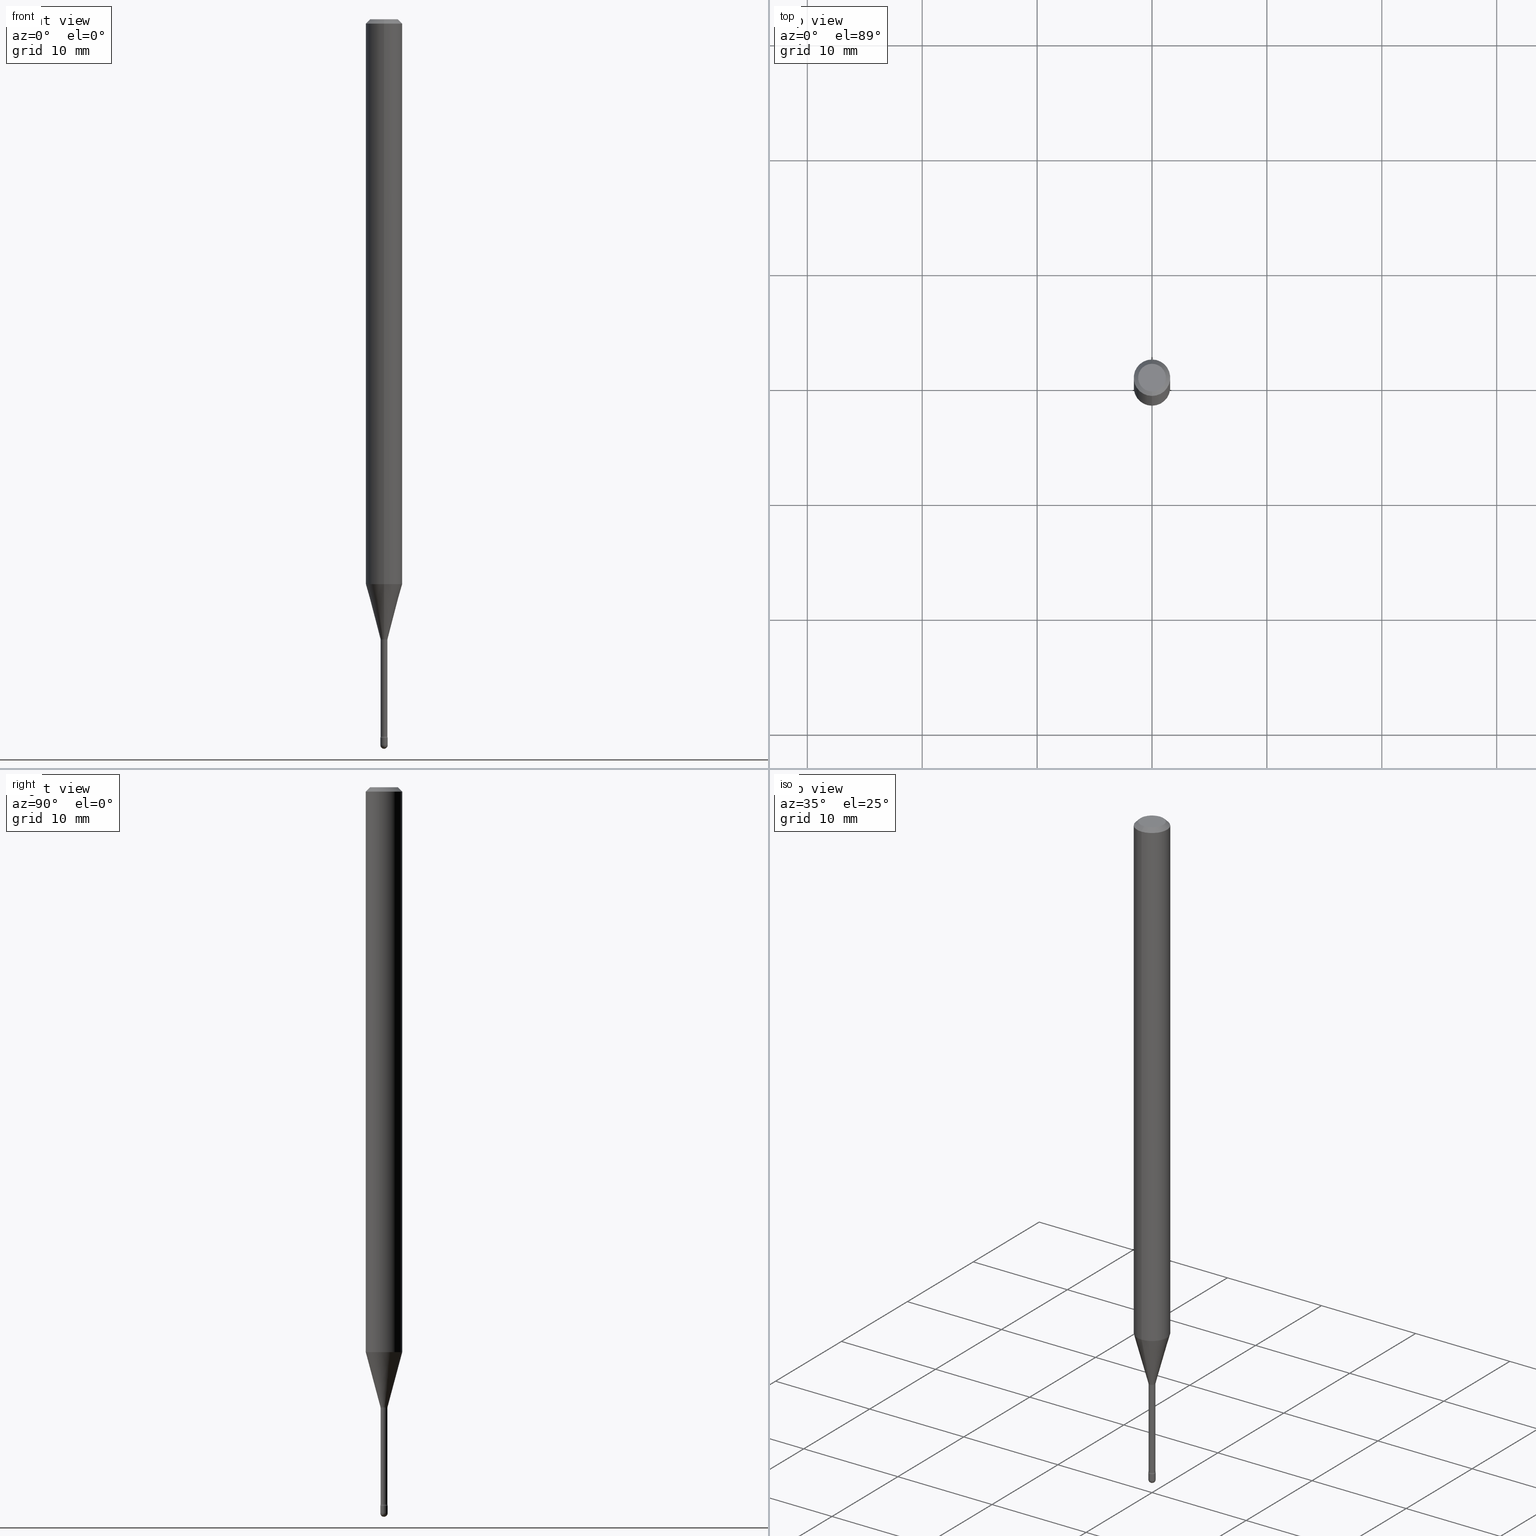
[diagram: canonical four-view strip — front | top / right | iso, engineering-drawing reading convention]
A machine part, canonical four-view strip (front | top / right | iso — engineering-drawing reading convention). The complete STEP part file that produces these views, byte-faithful:
ISO-10303-21;
HEADER;
FILE_DESCRIPTION (( 'STEP AP203' ),
    '1' );
FILE_NAME ('09428.STEP',
    '2024-04-09T23:02:52',
    ( '' ),
    ( '' ),
    'SwSTEP 2.0',
    'SolidWorks 2023',
    '' );
FILE_SCHEMA (( 'CONFIG_CONTROL_DESIGN' ));
ENDSEC;

DATA;
#1 = AXIS2_PLACEMENT_3D ( 'NONE', #545, #534, #242 ) ;
#2 = CARTESIAN_POINT ( 'NONE',  ( -8.204981146276162277E-17, -0.01175000000000742811, -2.126974787463811190 ) ) ;
#3 = FACE_OUTER_BOUND ( 'NONE', #55, .T. ) ;
#4 = LINE ( 'NONE', #525, #397 ) ;
#5 = ORIENTED_EDGE ( 'NONE', *, *, #80, .F. ) ;
#6 = CARTESIAN_POINT ( 'NONE',  ( 4.733511001452815197E-29, -6.758012053933247816E-15, -1.935598421515879908 ) ) ;
#7 = PERSON_AND_ORGANIZATION_ROLE ( 'classification_officer' ) ;
#8 = ORIENTED_EDGE ( 'NONE', *, *, #162, .T. ) ;
#9 = AXIS2_PLACEMENT_3D ( 'NONE', #354, #96, #439 ) ;
#10 = PLANE ( 'NONE',  #491 ) ;
#11 = CALENDAR_DATE ( 2024, 9, 4 ) ;
#12 = EDGE_CURVE ( 'NONE', #155, #165, #509, .T. ) ;
#13 = APPROVAL_ROLE ( '' ) ;
#14 = DIRECTION ( 'NONE',  ( -2.445468806185136597E-29, 3.491481338843145583E-15, 1.000000000000000000 ) ) ;
#15 = CARTESIAN_POINT ( 'NONE',  ( 6.083103655385528181E-29, -8.685059830372324987E-15, -2.487500000000000266 ) ) ;
#16 = COORDINATED_UNIVERSAL_TIME_OFFSET ( 5, 0, .BEHIND. ) ;
#17 = TOROIDAL_SURFACE ( 'NONE', #452, 0.02675000000000003764, 0.01499999999999998904 ) ;
#18 = APPROVAL ( #562, 'UNSPECIFIED' ) ;
#19 = ORIENTED_EDGE ( 'NONE', *, *, #275, .F. ) ;
#20 = CYLINDRICAL_SURFACE ( 'NONE', #521, 0.06250000000000000000 ) ;
#21 = ORIENTED_EDGE ( 'NONE', *, *, #478, .F. ) ;
#22 = ORIENTED_EDGE ( 'NONE', *, *, #519, .T. ) ;
#23 = EDGE_CURVE ( 'NONE', #466, #461, #209, .T. ) ;
#24 = CARTESIAN_POINT ( 'NONE',  ( -1.169113584055446105E-44, 1.669184350826100908E-30, 4.780733988912460139E-16 ) ) ;
#25 = FACE_OUTER_BOUND ( 'NONE', #453, .T. ) ;
#26 = ORIENTED_EDGE ( 'NONE', *, *, #12, .T. ) ;
#27 = DIRECTION ( 'NONE',  ( -6.982962677686265133E-15, -1.000000000000000000, 3.491432922662056369E-15 ) ) ;
#28 = CARTESIAN_POINT ( 'NONE',  ( 4.440892098501098492E-16, 0.06249999999999323458, -1.935598421515880352 ) ) ;
#29 = SECURITY_CLASSIFICATION ( '', '', #283 ) ;
#30 = ORIENTED_EDGE ( 'NONE', *, *, #541, .F. ) ;
#31 = SPHERICAL_SURFACE ( 'NONE', #417, 0.01249999999999996947 ) ;
#32 = EDGE_LOOP ( 'NONE', ( #249, #109 ) ) ;
#33 = DIRECTION ( 'NONE',  ( -2.445502615023692233E-29, 3.491432922662054397E-15, 1.000000000000000000 ) ) ;
#34 = PLANE ( 'NONE',  #551 ) ;
#35 = CARTESIAN_POINT ( 'NONE',  ( 1.900701818158788115E-16, 0.02674999999999257486, -2.126974787463811190 ) ) ;
#36 = AXIS2_PLACEMENT_3D ( 'NONE', #252, #414, #339 ) ;
#37 = DIMENSIONAL_EXPONENTS ( 1.000000000000000000, 0.000000000000000000, 0.000000000000000000, 0.000000000000000000, 0.000000000000000000, 0.000000000000000000, 0.000000000000000000 ) ;
#38 = VECTOR ( 'NONE', #303, 39.37007874015748143 ) ;
#39 = CIRCLE ( 'NONE', #102, 0.01499999999999999424 ) ;
#40 = FACE_OUTER_BOUND ( 'NONE', #532, .T. ) ;
#41 = FACE_OUTER_BOUND ( 'NONE', #328, .T. ) ;
#42 = DIRECTION ( 'NONE',  ( -6.982962677686266711E-15, -1.000000000000000000, 3.491432922662054003E-15 ) ) ;
#43 = ADVANCED_FACE ( 'NONE', ( #25 ), #270, .T. ) ;
#44 = DIRECTION ( 'NONE',  ( -6.982962677686265133E-15, -1.000000000000000000, 0.000000000000000000 ) ) ;
#45 = AXIS2_PLACEMENT_3D ( 'NONE', #531, #14, #399 ) ;
#46 = DIRECTION ( 'NONE',  ( -2.445502615023692233E-29, 3.491432922662054397E-15, 1.000000000000000000 ) ) ;
#47 = CALENDAR_DATE ( 2024, 9, 4 ) ;
#48 = ORIENTED_EDGE ( 'NONE', *, *, #151, .T. ) ;
#49 = DIRECTION ( 'NONE',  ( -2.445468806185136597E-29, 3.491481338843145583E-15, 1.000000000000000000 ) ) ;
#50 = PRODUCT_RELATED_PRODUCT_CATEGORY ( 'detail', '', ( #340 ) ) ;
#51 = AXIS2_PLACEMENT_3D ( 'NONE', #264, #312, #482 ) ;
#52 = FACE_OUTER_BOUND ( 'NONE', #380, .T. ) ;
#53 = EDGE_CURVE ( 'NONE', #329, #247, #396, .T. ) ;
#54 = DIRECTION ( 'NONE',  ( -6.982962677686265133E-15, -1.000000000000000000, 0.000000000000000000 ) ) ;
#55 = EDGE_LOOP ( 'NONE', ( #271, #332, #256, #257 ) ) ;
#56 = EDGE_CURVE ( 'NONE', #70, #302, #240, .T. ) ;
#57 = DIRECTION ( 'NONE',  ( 1.839019923739597949E-15, 0.2588190451025246253, 0.9659258262890670910 ) ) ;
#58 = DIRECTION ( 'NONE',  ( -6.982962677686266711E-15, -1.000000000000000000, 3.491432922662054003E-15 ) ) ;
#59 = CARTESIAN_POINT ( 'NONE',  ( 0.000000000000000000, 0.000000000000000000, 0.000000000000000000 ) ) ;
#60 = AXIS2_PLACEMENT_3D ( 'NONE', #422, #33, #343 ) ;
#61 = ORIENTED_EDGE ( 'NONE', *, *, #79, .F. ) ;
#62 = VERTEX_POINT ( 'NONE', #28 ) ;
#63 = ADVANCED_FACE ( 'NONE', ( #124 ), #499, .T. ) ;
#64 = DIRECTION ( 'NONE',  ( -2.445502615023692233E-29, 3.491432922662054397E-15, 1.000000000000000000 ) ) ;
#65 = DIRECTION ( 'NONE',  ( 6.982962677686265922E-15, 1.000000000000000000, -3.483106191921935554E-15 ) ) ;
#66 = DIRECTION ( 'NONE',  ( -2.445468806185136597E-29, 3.491481338843145583E-15, 1.000000000000000000 ) ) ;
#67 = ORIENTED_EDGE ( 'NONE', *, *, #275, .T. ) ;
#68 = EDGE_LOOP ( 'NONE', ( #392, #22, #217, #294 ) ) ;
#69 = DIRECTION ( 'NONE',  ( -2.438088387897960049E-29, 3.491481338843145188E-15, 1.000000000000000000 ) ) ;
#70 = VERTEX_POINT ( 'NONE', #260 ) ;
#71 = CIRCLE ( 'NONE', #101, 0.01250000000000000243 ) ;
#72 = CC_DESIGN_SECURITY_CLASSIFICATION ( #29, ( #216 ) ) ;
#73 = ORIENTED_EDGE ( 'NONE', *, *, #263, .T. ) ;
#74 = DIRECTION ( 'NONE',  ( 6.982962677686265922E-15, 1.000000000000000000, -3.491432922662054792E-15 ) ) ;
#75 = DIRECTION ( 'NONE',  ( -6.982962677686265133E-15, -1.000000000000000000, 0.000000000000000000 ) ) ;
#76 = VERTEX_POINT ( 'NONE', #222 ) ;
#77 = CARTESIAN_POINT ( 'NONE',  ( 6.083103655385528181E-29, -8.685059830372324987E-15, -2.487500000000000266 ) ) ;
#78 = DIRECTION ( 'NONE',  ( -2.445502615023692233E-29, 3.491432922662054397E-15, 1.000000000000000000 ) ) ;
#79 = EDGE_CURVE ( 'NONE', #481, #76, #186, .T. ) ;
#80 = EDGE_CURVE ( 'NONE', #118, #547, #527, .T. ) ;
#81 = DIRECTION ( 'NONE',  ( -2.445502615023692233E-29, 3.491432922662054792E-15, 1.000000000000000000 ) ) ;
#82 = APPROVAL_DATE_TIME ( #306, #18 ) ;
#83 = AXIS2_PLACEMENT_3D ( 'NONE', #168, #508, #451 ) ;
#84 = CIRCLE ( 'NONE', #300, 0.01250000000000000069 ) ;
#85 =( GEOMETRIC_REPRESENTATION_CONTEXT ( 3 ) GLOBAL_UNCERTAINTY_ASSIGNED_CONTEXT ( ( #285 ) ) GLOBAL_UNIT_ASSIGNED_CONTEXT ( ( #119, #463, #362 ) ) REPRESENTATION_CONTEXT ( 'NONE', 'WORKASPACE' ) );
#86 = DIRECTION ( 'NONE',  ( -2.445502615023692233E-29, 3.491432922662054397E-15, 1.000000000000000000 ) ) ;
#87 = FACE_OUTER_BOUND ( 'NONE', #369, .T. ) ;
#88 = PERSON_AND_ORGANIZATION ( #198, #549 ) ;
#89 = CARTESIAN_POINT ( 'NONE',  ( 5.192028265057969730E-29, -7.412635058597031972E-15, -2.123092501787273267 ) ) ;
#90 = PERSON_AND_ORGANIZATION_ROLE ( 'design_owner' ) ;
#91 = CARTESIAN_POINT ( 'NONE',  ( 5.201522404832212587E-29, -7.426189798623276120E-15, -2.126974787463811190 ) ) ;
#92 = ADVANCED_FACE ( 'NONE', ( #3 ), #416, .F. ) ;
#93 = VECTOR ( 'NONE', #115, 39.37007874015748143 ) ;
#94 = AXIS2_PLACEMENT_3D ( 'NONE', #244, #69, #255 ) ;
#95 = EDGE_CURVE ( 'NONE', #281, #165, #522, .T. ) ;
#96 = DIRECTION ( 'NONE',  ( -2.445502615023692233E-29, 3.491432922662054397E-15, 1.000000000000000000 ) ) ;
#97 = PERSON_AND_ORGANIZATION ( #198, #549 ) ;
#98 = EDGE_CURVE ( 'NONE', #250, #444, #473, .T. ) ;
#99 = DATE_AND_TIME ( #490, #114 ) ;
#100 = ORIENTED_EDGE ( 'NONE', *, *, #98, .F. ) ;
#101 = AXIS2_PLACEMENT_3D ( 'NONE', #15, #66, #494 ) ;
#102 = AXIS2_PLACEMENT_3D ( 'NONE', #497, #460, #455 ) ;
#103 = FACE_OUTER_BOUND ( 'NONE', #553, .T. ) ;
#104 = EDGE_CURVE ( 'NONE', #423, #247, #241, .T. ) ;
#105 = CARTESIAN_POINT ( 'NONE',  ( 0.01250000000000000069, -8.683314089702904272E-15, -2.462000000000000188 ) ) ;
#106 = APPROVAL_STATUS ( 'not_yet_approved' ) ;
#107 = CARTESIAN_POINT ( 'NONE',  ( -1.867942516280556210E-16, -0.02675000000000743103, -2.126974787463811190 ) ) ;
#108 = EDGE_CURVE ( 'NONE', #70, #444, #135, .T. ) ;
#109 = ORIENTED_EDGE ( 'NONE', *, *, #201, .T. ) ;
#110 = EDGE_LOOP ( 'NONE', ( #73, #48, #278, #30 ) ) ;
#111 = CARTESIAN_POINT ( 'NONE',  ( 6.009290239977977822E-29, -8.579673835752435391E-15, -2.457316251501201698 ) ) ;
#112 = DIRECTION ( 'NONE',  ( -2.445502615023692233E-29, 3.491432922662054397E-15, 1.000000000000000000 ) ) ;
#113 = AXIS2_PLACEMENT_3D ( 'NONE', #565, #223, #351 ) ;
#114 = LOCAL_TIME ( 19, 2, 52.00000000000000000, #191 ) ;
#115 = DIRECTION ( 'NONE',  ( -2.445468806185136877E-29, 3.491481338843145188E-15, 1.000000000000000000 ) ) ;
#116 = CARTESIAN_POINT ( 'NONE',  ( -1.169113584055446105E-44, 1.669184350826100908E-30, 4.780733988912460139E-16 ) ) ;
#117 = CC_DESIGN_PERSON_AND_ORGANIZATION_ASSIGNMENT ( #431, #347, ( #524 ) ) ;
#118 = VERTEX_POINT ( 'NONE', #480 ) ;
#119 =( CONVERSION_BASED_UNIT ( 'INCH', #505 ) LENGTH_UNIT ( ) NAMED_UNIT ( #37 ) );
#120 = CARTESIAN_POINT ( 'NONE',  ( -8.204981146275385742E-17, -0.01175000000000862854, -2.457316251501201254 ) ) ;
#121 = VERTEX_POINT ( 'NONE', #130 ) ;
#122 = ORIENTED_EDGE ( 'NONE', *, *, #478, .T. ) ;
#123 = CARTESIAN_POINT ( 'NONE',  ( -8.204981146281378620E-17, -0.01175000000000002431, 5.190977357325252987E-16 ) ) ;
#124 = FACE_OUTER_BOUND ( 'NONE', #348, .T. ) ;
#125 = AXIS2_PLACEMENT_3D ( 'NONE', #214, #137, #42 ) ;
#126 = DIRECTION ( 'NONE',  ( -2.445502615023692233E-29, 3.491432922662054397E-15, 1.000000000000000000 ) ) ;
#127 = EDGE_CURVE ( 'NONE', #62, #165, #305, .T. ) ;
#128 = ORIENTED_EDGE ( 'NONE', *, *, #23, .F. ) ;
#129 = EDGE_CURVE ( 'NONE', #76, #118, #548, .T. ) ;
#130 = CARTESIAN_POINT ( 'NONE',  ( -0.01250000000000000069, -8.551725601332063255E-15, -2.462000000000000188 ) ) ;
#131 = CALENDAR_DATE ( 2024, 9, 4 ) ;
#132 = VERTEX_POINT ( 'NONE', #471 ) ;
#133 = DIRECTION ( 'NONE',  ( -2.445502615023692233E-29, 3.491432922662054397E-15, 1.000000000000000000 ) ) ;
#134 = DIRECTION ( 'NONE',  ( 0.000000000000000000, 0.000000000000000000, 1.000000000000000000 ) ) ;
#135 = CIRCLE ( 'NONE', #443, 0.01249999999999996947 ) ;
#136 = ORIENTED_EDGE ( 'NONE', *, *, #304, .F. ) ;
#137 = DIRECTION ( 'NONE',  ( -2.445502615023692233E-29, 3.491432922662054397E-15, 1.000000000000000000 ) ) ;
#138 = APPLICATION_PROTOCOL_DEFINITION ( 'international standard', 'config_control_design', 1994, #432 ) ;
#139 = LINE ( 'NONE', #174, #148 ) ;
#140 = DATE_AND_TIME ( #47, #160 ) ;
#141 = AXIS2_PLACEMENT_3D ( 'NONE', #301, #469, #75 ) ;
#142 = ADVANCED_FACE ( 'NONE', ( #566 ), #215, .T. ) ;
#143 = DIRECTION ( 'NONE',  ( -2.445502615023692233E-29, 3.491432922662054397E-15, 1.000000000000000000 ) ) ;
#144 = ADVANCED_FACE ( 'NONE', ( #41 ), #179, .T. ) ;
#145 = CARTESIAN_POINT ( 'NONE',  ( 0.000000000000000000, 0.000000000000000000, 0.000000000000000000 ) ) ;
#146 = LINE ( 'NONE', #323, #279 ) ;
#147 = EDGE_LOOP ( 'NONE', ( #333, #61, #177, #447 ) ) ;
#148 = VECTOR ( 'NONE', #81, 39.37007874015748143 ) ;
#149 = DIRECTION ( 'NONE',  ( -2.445502615023692233E-29, 3.491432922662054397E-15, 1.000000000000000000 ) ) ;
#150 = APPROVAL_STATUS ( 'not_yet_approved' ) ;
#151 = EDGE_CURVE ( 'NONE', #372, #118, #139, .T. ) ;
#152 = CARTESIAN_POINT ( 'NONE',  ( 0.01250000000000000243, -8.727830476773153796E-15, -2.487500000000000266 ) ) ;
#153 = ORIENTED_EDGE ( 'NONE', *, *, #162, .F. ) ;
#154 = CARTESIAN_POINT ( 'NONE',  ( 6.020827438188330788E-29, -8.595907855593977627E-15, -2.462000000000000188 ) ) ;
#155 = VERTEX_POINT ( 'NONE', #307 ) ;
#156 = CC_DESIGN_DATE_AND_TIME_ASSIGNMENT ( #99, #400, ( #29 ) ) ;
#157 = AXIS2_PLACEMENT_3D ( 'NONE', #154, #112, #450 ) ;
#158 = DIRECTION ( 'NONE',  ( -2.445468806185136877E-29, 3.491481338843145188E-15, 1.000000000000000000 ) ) ;
#159 = VECTOR ( 'NONE', #195, 39.37007874015748143 ) ;
#160 = LOCAL_TIME ( 19, 2, 52.00000000000000000, #16 ) ;
#161 = ORIENTED_EDGE ( 'NONE', *, *, #459, .F. ) ;
#162 = EDGE_CURVE ( 'NONE', #461, #121, #436, .T. ) ;
#163 = ORIENTED_EDGE ( 'NONE', *, *, #245, .F. ) ;
#164 = CARTESIAN_POINT ( 'NONE',  ( 6.083103655385528181E-29, -8.685059830372324987E-15, -2.487500000000000266 ) ) ;
#165 = VERTEX_POINT ( 'NONE', #379 ) ;
#166 = MANIFOLD_SOLID_BREP ( 'Body-Move/Copy2[1]', #193 ) ;
#167 = CARTESIAN_POINT ( 'NONE',  ( -8.561889171220826126E-17, -0.01226111260567139434, -2.123092501787273267 ) ) ;
#168 = CARTESIAN_POINT ( 'NONE',  ( 3.668253922535558756E-31, -5.237149383993110783E-17, -0.01500000000000008271 ) ) ;
#169 = AXIS2_PLACEMENT_3D ( 'NONE', #366, #543, #65 ) ;
#170 = DIRECTION ( 'NONE',  ( 1.000000000000000000, -6.982962677686292743E-15, 0.000000000000000000 ) ) ;
#171 = AXIS2_PLACEMENT_3D ( 'NONE', #89, #345, #346 ) ;
#172 = AXIS2_PLACEMENT_3D ( 'NONE', #282, #370, #27 ) ;
#173 = DIRECTION ( 'NONE',  ( -2.445502615023692233E-29, 3.491432922662054792E-15, 1.000000000000000000 ) ) ;
#174 = CARTESIAN_POINT ( 'NONE',  ( 8.348877145181193227E-17, 0.01175000000000002431, 4.370490620499668277E-16 ) ) ;
#175 = EDGE_CURVE ( 'NONE', #547, #118, #262, .T. ) ;
#176 = MECHANICAL_CONTEXT ( 'NONE', #432, 'mechanical' ) ;
#177 = ORIENTED_EDGE ( 'NONE', *, *, #361, .T. ) ;
#178 = DIRECTION ( 'NONE',  ( 1.000000000000000000, -6.982962677686292743E-15, 0.000000000000000000 ) ) ;
#179 = CYLINDRICAL_SURFACE ( 'NONE', #113, 0.01250000000000000243 ) ;
#180 = CIRCLE ( 'NONE', #364, 0.06250000000000000000 ) ;
#181 = AXIS2_PLACEMENT_3D ( 'NONE', #310, #479, #428 ) ;
#182 = ADVANCED_FACE ( 'NONE', ( #87 ), #187, .T. ) ;
#183 = FACE_OUTER_BOUND ( 'NONE', #544, .T. ) ;
#184 = DIRECTION ( 'NONE',  ( -2.445468806185136597E-29, 3.491481338843145583E-15, 1.000000000000000000 ) ) ;
#185 = DIRECTION ( 'NONE',  ( -2.445502615023692233E-29, 3.491432922662054397E-15, 1.000000000000000000 ) ) ;
#186 = CIRCLE ( 'NONE', #171, 0.01226111260566398187 ) ;
#187 = CONICAL_SURFACE ( 'NONE', #51, 0.06250000000000000000, 0.7853981633974483900 ) ;
#188 = CC_DESIGN_APPROVAL ( #401, ( #29 ) ) ;
#189 = CYLINDRICAL_SURFACE ( 'NONE', #342, 0.06250000000000000000 ) ;
#190 = PERSON_AND_ORGANIZATION_ROLE ( 'design_supplier' ) ;
#191 = COORDINATED_UNIVERSAL_TIME_OFFSET ( 5, 0, .BEHIND. ) ;
#192 = APPROVAL_DATE_TIME ( #228, #401 ) ;
#193 = CLOSED_SHELL ( 'NONE', ( #337, #563, #394, #449, #144 ) ) ;
#194 = AXIS2_PLACEMENT_3D ( 'NONE', #107, #208, #331 ) ;
#195 = DIRECTION ( 'NONE',  ( -4.851104656540964275E-15, -0.7071067811865500152, -0.7071067811865450192 ) ) ;
#196 = ORIENTED_EDGE ( 'NONE', *, *, #298, .T. ) ;
#197 = DIRECTION ( 'NONE',  ( -6.982962677686265922E-15, -1.000000000000000000, 3.491432922662053608E-15 ) ) ;
#198 = PERSON ( 'UNSPECIFIED', 'UNSPECIFIED', 'UNSPECIFIED', ('UNSPECIFIED'), ('UNSPECIFIED'), ('UNSPECIFIED') ) ;
#199 = ORIENTED_EDGE ( 'NONE', *, *, #151, .F. ) ;
#200 = ORIENTED_EDGE ( 'NONE', *, *, #104, .T. ) ;
#201 = EDGE_CURVE ( 'NONE', #132, #281, #537, .T. ) ;
#202 = DIRECTION ( 'NONE',  ( -1.000000000000000000, 6.982962677686266711E-15, -4.883557194083112901E-29 ) ) ;
#203 = EDGE_CURVE ( 'NONE', #62, #274, #180, .T. ) ;
#204 = ORIENTED_EDGE ( 'NONE', *, *, #501, .T. ) ;
#205 = ORIENTED_EDGE ( 'NONE', *, *, #203, .T. ) ;
#206 = AXIS2_PLACEMENT_3D ( 'NONE', #385, #184, #170 ) ;
#207 = ORIENTED_EDGE ( 'NONE', *, *, #108, .T. ) ;
#208 = DIRECTION ( 'NONE',  ( -1.000000000000000000, 6.982962677686265922E-15, -4.883557194083112340E-29 ) ) ;
#209 = LINE ( 'NONE', #246, #93 ) ;
#210 = CARTESIAN_POINT ( 'NONE',  ( 6.020744200827806517E-29, -8.596027056231825938E-15, -2.462000000000000188 ) ) ;
#211 = ORIENTED_EDGE ( 'NONE', *, *, #501, .F. ) ;
#212 = ADVANCED_FACE ( 'NONE', ( #318 ), #381, .F. ) ;
#213 = DIRECTION ( 'NONE',  ( 2.445502615023691672E-29, -3.491432922662054792E-15, -1.000000000000000000 ) ) ;
#214 = CARTESIAN_POINT ( 'NONE',  ( 5.201450494285011202E-29, -7.426292778619762925E-15, -2.126974787463811190 ) ) ;
#215 = CONICAL_SURFACE ( 'NONE', #559, 0.01226111260566398187, 0.2617993877991499629 ) ;
#216 = PRODUCT_DEFINITION_FORMATION_WITH_SPECIFIED_SOURCE ( 'ANY', '', #340, .NOT_KNOWN. ) ;
#217 = ORIENTED_EDGE ( 'NONE', *, *, #459, .T. ) ;
#218 = DIRECTION ( 'NONE',  ( -2.445502615023692233E-29, 3.491432922662054792E-15, 1.000000000000000000 ) ) ;
#219 = ORIENTED_EDGE ( 'NONE', *, *, #56, .F. ) ;
#220 = ADVANCED_FACE ( 'NONE', ( #103 ), #10, .F. ) ;
#221 = CARTESIAN_POINT ( 'NONE',  ( 5.192028265057969730E-29, -7.412635058597031972E-15, -2.123092501787273267 ) ) ;
#222 = CARTESIAN_POINT ( 'NONE',  ( 2.656048273965367856E-16, 0.01226111260565657113, -2.123092501787273267 ) ) ;
#223 = DIRECTION ( 'NONE',  ( -2.445468806185136597E-29, 3.491481338843145583E-15, 1.000000000000000000 ) ) ;
#224 = CIRCLE ( 'NONE', #254, 0.01175000000000004860 ) ;
#225 = ORIENTED_EDGE ( 'NONE', *, *, #56, .T. ) ;
#226 = AXIS2_PLACEMENT_3D ( 'NONE', #77, #564, #178 ) ;
#227 = DIRECTION ( 'NONE',  ( -2.445502615023692233E-29, 3.491432922662054792E-15, 1.000000000000000000 ) ) ;
#228 = DATE_AND_TIME ( #11, #538 ) ;
#229 = ORIENTED_EDGE ( 'NONE', *, *, #245, .T. ) ;
#230 = DIRECTION ( 'NONE',  ( 1.000000000000000000, -6.982962677686294321E-15, 0.000000000000000000 ) ) ;
#231 = COORDINATED_UNIVERSAL_TIME_OFFSET ( 5, 0, .BEHIND. ) ;
#232 = AXIS2_PLACEMENT_3D ( 'NONE', #59, #295, #464 ) ;
#233 = APPROVAL_PERSON_ORGANIZATION ( #97, #401, #526 ) ;
#234 = DIRECTION ( 'NONE',  ( -6.982962677686265922E-15, -1.000000000000000000, 4.370956789862821150E-15 ) ) ;
#235 = ADVANCED_FACE ( 'NONE', ( #52 ), #17, .F. ) ;
#236 = EDGE_CURVE ( 'NONE', #372, #329, #224, .T. ) ;
#237 =( LENGTH_UNIT ( ) NAMED_UNIT ( * ) SI_UNIT ( $, .METRE. ) );
#238 = DIRECTION ( 'NONE',  ( -2.445502615023692233E-29, 3.491432922662054397E-15, 1.000000000000000000 ) ) ;
#239 = PERSON_AND_ORGANIZATION_ROLE ( 'creator' ) ;
#240 = CIRCLE ( 'NONE', #36, 0.01249999999999996947 ) ;
#241 = CIRCLE ( 'NONE', #500, 0.01250000000000000069 ) ;
#242 = DIRECTION ( 'NONE',  ( 6.982962677686266711E-15, 1.000000000000000000, 0.000000000000000000 ) ) ;
#243 = CIRCLE ( 'NONE', #181, 0.04749999999999999362 ) ;
#244 = CARTESIAN_POINT ( 'NONE',  ( 6.020744200827806517E-29, -8.596027056231825938E-15, -2.462000000000000188 ) ) ;
#245 = EDGE_CURVE ( 'NONE', #274, #62, #427, .T. ) ;
#246 = CARTESIAN_POINT ( 'NONE',  ( 0.01250000000000000243, -8.728703347107835853E-17, 6.095220969744921493E-31 ) ) ;
#247 = VERTEX_POINT ( 'NONE', #276 ) ;
#248 = LINE ( 'NONE', #546, #159 ) ;
#249 = ORIENTED_EDGE ( 'NONE', *, *, #530, .T. ) ;
#250 = VERTEX_POINT ( 'NONE', #437 ) ;
#251 = CYLINDRICAL_SURFACE ( 'NONE', #405, 0.01175000000000002431 ) ;
#252 = CARTESIAN_POINT ( 'NONE',  ( 6.083103655385528181E-29, -8.685059830372324987E-15, -2.487500000000000266 ) ) ;
#253 = CC_DESIGN_PERSON_AND_ORGANIZATION_ASSIGNMENT ( #277, #190, ( #216 ) ) ;
#254 = AXIS2_PLACEMENT_3D ( 'NONE', #442, #143, #54 ) ;
#255 = DIRECTION ( 'NONE',  ( 1.000000000000000000, -6.982962677686265922E-15, 4.876176775795935793E-29 ) ) ;
#256 = ORIENTED_EDGE ( 'NONE', *, *, #80, .T. ) ;
#257 = ORIENTED_EDGE ( 'NONE', *, *, #361, .F. ) ;
#258 = ADVANCED_FACE ( 'NONE', ( #316 ), #189, .T. ) ;
#259 = ORIENTED_EDGE ( 'NONE', *, *, #327, .T. ) ;
#260 = CARTESIAN_POINT ( 'NONE',  ( 6.114206494393579661E-29, -8.727937942858396428E-15, -2.500000000000000000 ) ) ;
#261 = DIRECTION ( 'NONE',  ( -6.982962677686265922E-15, -1.000000000000000000, 0.000000000000000000 ) ) ;
#262 = CIRCLE ( 'NONE', #314, 0.01175000000000000176 ) ;
#263 = EDGE_CURVE ( 'NONE', #329, #372, #350, .T. ) ;
#264 = CARTESIAN_POINT ( 'NONE',  ( 3.668253922535558756E-31, -5.237149383993110783E-17, -0.01500000000000008271 ) ) ;
#265 = CALENDAR_DATE ( 2024, 9, 4 ) ;
#266 = CARTESIAN_POINT ( 'NONE',  ( 5.192028265057969730E-29, -7.412635058597031972E-15, -2.123092501787273267 ) ) ;
#267 = APPROVAL_ROLE ( '' ) ;
#268 = ORIENTED_EDGE ( 'NONE', *, *, #263, .F. ) ;
#269 = DIRECTION ( 'NONE',  ( -2.445502615023691672E-29, 3.491432922662054792E-15, 1.000000000000000000 ) ) ;
#270 = CONICAL_SURFACE ( 'NONE', #169, 0.06250000000000000000, 0.7853981633974483900 ) ;
#271 = ORIENTED_EDGE ( 'NONE', *, *, #519, .F. ) ;
#272 = DIRECTION ( 'NONE',  ( -6.982962677686266711E-15, -1.000000000000000000, 3.491432922662054003E-15 ) ) ;
#273 = PERSON_AND_ORGANIZATION ( #198, #549 ) ;
#274 = VERTEX_POINT ( 'NONE', #357 ) ;
#275 = EDGE_CURVE ( 'NONE', #121, #461, #84, .T. ) ;
#276 = CARTESIAN_POINT ( 'NONE',  ( -8.728703347101810928E-17, -0.01250000000000859104, -2.462000000000000188 ) ) ;
#277 = PERSON_AND_ORGANIZATION ( #198, #549 ) ;
#278 = ORIENTED_EDGE ( 'NONE', *, *, #175, .F. ) ;
#279 = VECTOR ( 'NONE', #227, 39.37007874015748143 ) ;
#280 = DIRECTION ( 'NONE',  ( -6.982962677686265922E-15, -1.000000000000000000, 3.491432922662053608E-15 ) ) ;
#281 = VERTEX_POINT ( 'NONE', #395 ) ;
#282 = CARTESIAN_POINT ( 'NONE',  ( -1.169113584055446105E-44, 1.669184350826100908E-30, 4.780733988912460139E-16 ) ) ;
#283 = SECURITY_CLASSIFICATION_LEVEL ( 'unclassified' ) ;
#284 = PLANE ( 'NONE',  #94 ) ;
#285 = UNCERTAINTY_MEASURE_WITH_UNIT (LENGTH_MEASURE( 1.000000000000000082E-05 ), #119, 'distance_accuracy_value', 'NONE');
#286 = ORIENTED_EDGE ( 'NONE', *, *, #335, .T. ) ;
#287 = ORIENTED_EDGE ( 'NONE', *, *, #127, .F. ) ;
#288 = AXIS2_PLACEMENT_3D ( 'NONE', #35, #383, #311 ) ;
#289 = FACE_OUTER_BOUND ( 'NONE', #435, .T. ) ;
#290 = ORIENTED_EDGE ( 'NONE', *, *, #298, .F. ) ;
#291 = ORIENTED_EDGE ( 'NONE', *, *, #356, .F. ) ;
#292 = DIRECTION ( 'NONE',  ( -6.982962677686265922E-15, -1.000000000000000000, 3.483106191921935554E-15 ) ) ;
#293 = DIRECTION ( 'NONE',  ( -6.982962677686265133E-15, -1.000000000000000000, 0.000000000000000000 ) ) ;
#294 = ORIENTED_EDGE ( 'NONE', *, *, #203, .F. ) ;
#295 = DIRECTION ( 'NONE',  ( -2.445468806185136597E-29, 3.491481338843145583E-15, 1.000000000000000000 ) ) ;
#296 = ORIENTED_EDGE ( 'NONE', *, *, #462, .F. ) ;
#297 = EDGE_LOOP ( 'NONE', ( #390, #409, #153, #128, #196 ) ) ;
#298 = EDGE_CURVE ( 'NONE', #466, #302, #320, .T. ) ;
#299 = CLOSED_SHELL ( 'NONE', ( #92, #367, #235, #43, #412, #63, #142, #258, #182, #515, #220, #557, #487, #212 ) ) ;
#300 = AXIS2_PLACEMENT_3D ( 'NONE', #440, #49, #230 ) ;
#301 = CARTESIAN_POINT ( 'NONE',  ( 5.192028265057969730E-29, -7.412635058597031972E-15, -2.123092501787273267 ) ) ;
#302 = VERTEX_POINT ( 'NONE', #363 ) ;
#303 = DIRECTION ( 'NONE',  ( 4.937700262164548042E-15, 0.7071067811865451302, -0.7071067811865499042 ) ) ;
#304 = EDGE_CURVE ( 'NONE', #274, #155, #146, .T. ) ;
#305 = LINE ( 'NONE', #556, #520 ) ;
#306 = DATE_AND_TIME ( #131, #315 ) ;
#307 = CARTESIAN_POINT ( 'NONE',  ( -4.364351673553912750E-16, -0.06250000000000005551, -0.01499999999999986587 ) ) ;
#308 = COORDINATED_UNIVERSAL_TIME_OFFSET ( 5, 0, .BEHIND. ) ;
#309 = EDGE_LOOP ( 'NONE', ( #287, #205, #540, #296 ) ) ;
#310 = CARTESIAN_POINT ( 'NONE',  ( 2.023798705129042807E-45, -2.888905950267218175E-31, -8.274933184014726053E-17 ) ) ;
#311 = DIRECTION ( 'NONE',  ( 7.105427357601001859E-15, 1.000000000000000000, 0.000000000000000000 ) ) ;
#312 = DIRECTION ( 'NONE',  ( 2.445502615023692233E-29, -3.491432922662054397E-15, -1.000000000000000000 ) ) ;
#313 = DIRECTION ( 'NONE',  ( -6.982962677686265922E-15, -1.000000000000000000, 3.491432922662054792E-15 ) ) ;
#314 = AXIS2_PLACEMENT_3D ( 'NONE', #91, #388, #523 ) ;
#315 = LOCAL_TIME ( 19, 2, 52.00000000000000000, #514 ) ;
#316 = FACE_OUTER_BOUND ( 'NONE', #309, .T. ) ;
#317 = EDGE_CURVE ( 'NONE', #250, #121, #4, .T. ) ;
#318 = FACE_OUTER_BOUND ( 'NONE', #147, .T. ) ;
#319 = ORIENTED_EDGE ( 'NONE', *, *, #12, .F. ) ;
#320 = CIRCLE ( 'NONE', #45, 0.01250000000000000243 ) ;
#321 = APPROVAL_PERSON_ORGANIZATION ( #88, #18, #267 ) ;
#322 = DIRECTION ( 'NONE',  ( -2.445502615023692233E-29, 3.491432922662054397E-15, 1.000000000000000000 ) ) ;
#323 = CARTESIAN_POINT ( 'NONE',  ( -4.364351673553916201E-16, -0.06250000000000000000, 6.962879565576243891E-16 ) ) ;
#324 = CYLINDRICAL_SURFACE ( 'NONE', #232, 0.01250000000000000243 ) ;
#325 = ORIENTED_EDGE ( 'NONE', *, *, #201, .F. ) ;
#326 = LINE ( 'NONE', #167, #406 ) ;
#327 = EDGE_CURVE ( 'NONE', #132, #155, #248, .T. ) ;
#328 = EDGE_LOOP ( 'NONE', ( #344, #555, #204, #558, #19 ) ) ;
#329 = VERTEX_POINT ( 'NONE', #120 ) ;
#330 = AXIS2_PLACEMENT_3D ( 'NONE', #489, #46, #272 ) ;
#331 = DIRECTION ( 'NONE',  ( -6.982962677686265133E-15, -1.000000000000000000, 0.000000000000000000 ) ) ;
#332 = ORIENTED_EDGE ( 'NONE', *, *, #129, .T. ) ;
#333 = ORIENTED_EDGE ( 'NONE', *, *, #129, .F. ) ;
#334 = CARTESIAN_POINT ( 'NONE',  ( -8.881784196995158866E-17, -0.01250000000000867084, -2.487500000000000266 ) ) ;
#335 = EDGE_CURVE ( 'NONE', #247, #423, #474, .T. ) ;
#336 = ORIENTED_EDGE ( 'NONE', *, *, #53, .F. ) ;
#337 = ADVANCED_FACE ( 'NONE', ( #377 ), #324, .T. ) ;
#338 = CARTESIAN_POINT ( 'NONE',  ( 3.668253922535558756E-31, -5.237149383993110783E-17, -0.01500000000000008271 ) ) ;
#339 = DIRECTION ( 'NONE',  ( 6.982962677686265922E-15, 1.000000000000000000, 0.000000000000000000 ) ) ;
#340 = PRODUCT ( '09428', '09428', '', ( #176 ) ) ;
#341 = ORIENTED_EDGE ( 'NONE', *, *, #541, .T. ) ;
#342 = AXIS2_PLACEMENT_3D ( 'NONE', #535, #484, #280 ) ;
#343 = DIRECTION ( 'NONE',  ( -6.982962677686266711E-15, -1.000000000000000000, 3.491432922662054792E-15 ) ) ;
#344 = ORIENTED_EDGE ( 'NONE', *, *, #317, .F. ) ;
#345 = DIRECTION ( 'NONE',  ( -2.445502615023692233E-29, 3.491432922662054397E-15, 1.000000000000000000 ) ) ;
#346 = DIRECTION ( 'NONE',  ( -6.982962677686265133E-15, -1.000000000000000000, 0.000000000000000000 ) ) ;
#347 = PERSON_AND_ORGANIZATION_ROLE ( 'creator' ) ;
#348 = EDGE_LOOP ( 'NONE', ( #465, #410, #163, #161 ) ) ;
#349 = DIRECTION ( 'NONE',  ( -6.982962677686265133E-15, -1.000000000000000000, 0.000000000000000000 ) ) ;
#350 = CIRCLE ( 'NONE', #9, 0.01175000000000004860 ) ;
#351 = DIRECTION ( 'NONE',  ( 1.000000000000000000, -6.982962677686267499E-15, 4.876176775795936353E-29 ) ) ;
#352 = MANIFOLD_SOLID_BREP ( 'Body-Move/Copy2[2]', #299 ) ;
#353 = DIRECTION ( 'NONE',  ( 1.000000000000000000, -6.982962677686294321E-15, 0.000000000000000000 ) ) ;
#354 = CARTESIAN_POINT ( 'NONE',  ( 6.009373318986404727E-29, -8.579554861883802468E-15, -2.457316251501201254 ) ) ;
#355 = DIRECTION ( 'NONE',  ( 1.000000000000000000, 0.000000000000000000, 0.000000000000000000 ) ) ;
#356 = EDGE_CURVE ( 'NONE', #302, #250, #71, .T. ) ;
#357 = CARTESIAN_POINT ( 'NONE',  ( -4.364351673553444364E-16, -0.06250000000000677236, -1.935598421515879686 ) ) ;
#358 = SHAPE_DEFINITION_REPRESENTATION ( #371, #426 ) ;
#359 = AXIS2_PLACEMENT_3D ( 'NONE', #338, #64, #292 ) ;
#360 = CC_DESIGN_PERSON_AND_ORGANIZATION_ASSIGNMENT ( #441, #7, ( #29 ) ) ;
#361 = EDGE_CURVE ( 'NONE', #481, #547, #387, .T. ) ;
#362 =( NAMED_UNIT ( * ) SI_UNIT ( $, .STERADIAN. ) SOLID_ANGLE_UNIT ( ) );
#363 = CARTESIAN_POINT ( 'NONE',  ( 8.728703347113906385E-17, 0.01249999999999130106, -2.487500000000000266 ) ) ;
#364 = AXIS2_PLACEMENT_3D ( 'NONE', #512, #126, #493 ) ;
#365 = FACE_OUTER_BOUND ( 'NONE', #110, .T. ) ;
#366 = CARTESIAN_POINT ( 'NONE',  ( 3.668253922535558756E-31, -5.237149383993110783E-17, -0.01500000000000008271 ) ) ;
#367 = ADVANCED_FACE ( 'NONE', ( #365 ), #251, .T. ) ;
#368 = CARTESIAN_POINT ( 'NONE',  ( 8.881784197007265416E-17, 0.01249999999999139820, -2.462000000000000188 ) ) ;
#369 = EDGE_LOOP ( 'NONE', ( #507, #420, #457, #498 ) ) ;
#370 = DIRECTION ( 'NONE',  ( -2.445502615023692233E-29, 3.491432922662054397E-15, 1.000000000000000000 ) ) ;
#371 = PRODUCT_DEFINITION_SHAPE ( 'NONE', 'NONE',  #524 ) ;
#372 = VERTEX_POINT ( 'NONE', #539 ) ;
#373 = CC_DESIGN_APPROVAL ( #18, ( #524 ) ) ;
#374 = SPHERICAL_SURFACE ( 'NONE', #1, 0.01249999999999996947 ) ;
#375 = DIRECTION ( 'NONE',  ( 6.982962677686266711E-15, 1.000000000000000000, 0.000000000000000000 ) ) ;
#376 = ORIENTED_EDGE ( 'NONE', *, *, #104, .F. ) ;
#377 = FACE_OUTER_BOUND ( 'NONE', #297, .T. ) ;
#378 = CARTESIAN_POINT ( 'NONE',  ( -1.867942516280478063E-16, -0.02675000000000861758, -2.457316251501201698 ) ) ;
#379 = CARTESIAN_POINT ( 'NONE',  ( 4.440892098501102436E-16, 0.06249999999999995143, -0.01500000000000030129 ) ) ;
#380 = EDGE_LOOP ( 'NONE', ( #518, #122, #200, #336 ) ) ;
#381 = TOROIDAL_SURFACE ( 'NONE', #330, 0.02675000000000000294, 0.01500000000000002720 ) ;
#382 = TOROIDAL_SURFACE ( 'NONE', #492, 0.02675000000000003764, 0.01499999999999998904 ) ;
#383 = DIRECTION ( 'NONE',  ( 1.000000000000000000, -7.105427357601001070E-15, 4.926314915614870378E-29 ) ) ;
#384 = APPLICATION_PROTOCOL_DEFINITION ( 'international standard', 'config_control_design', 1994, #516 ) ;
#385 = CARTESIAN_POINT ( 'NONE',  ( 6.083103655385528181E-29, -8.685059830372324987E-15, -2.487500000000000266 ) ) ;
#386 = DIRECTION ( 'NONE',  ( -7.105427357601001070E-15, -1.000000000000000000, 0.000000000000000000 ) ) ;
#387 = CIRCLE ( 'NONE', #194, 0.01500000000000002720 ) ;
#388 = DIRECTION ( 'NONE',  ( -2.445502615023692233E-29, 3.491432922662054397E-15, 1.000000000000000000 ) ) ;
#389 = VECTOR ( 'NONE', #173, 39.37007874015748143 ) ;
#390 = ORIENTED_EDGE ( 'NONE', *, *, #356, .T. ) ;
#391 = APPROVAL_DATE_TIME ( #140, #411 ) ;
#392 = ORIENTED_EDGE ( 'NONE', *, *, #496, .F. ) ;
#393 = CC_DESIGN_PERSON_AND_ORGANIZATION_ASSIGNMENT ( #472, #90, ( #340 ) ) ;
#394 = ADVANCED_FACE ( 'NONE', ( #403 ), #284, .T. ) ;
#395 = CARTESIAN_POINT ( 'NONE',  ( 3.840629472727447874E-16, 0.04749999999999999362, -2.485923956665948360E-16 ) ) ;
#396 = CIRCLE ( 'NONE', #404, 0.01499999999999999424 ) ;
#397 = VECTOR ( 'NONE', #158, 39.37007874015748143 ) ;
#398 = CIRCLE ( 'NONE', #226, 0.01250000000000000243 ) ;
#399 = DIRECTION ( 'NONE',  ( 1.000000000000000000, -6.982962677686292743E-15, 0.000000000000000000 ) ) ;
#400 = DATE_TIME_ROLE ( 'classification_date' ) ;
#401 = APPROVAL ( #150, 'UNSPECIFIED' ) ;
#402 = CARTESIAN_POINT ( 'NONE',  ( 6.009290239977977822E-29, -8.579673835752435391E-15, -2.457316251501201698 ) ) ;
#403 = FACE_OUTER_BOUND ( 'NONE', #495, .T. ) ;
#404 = AXIS2_PLACEMENT_3D ( 'NONE', #378, #503, #293 ) ;
#405 = AXIS2_PLACEMENT_3D ( 'NONE', #24, #238, #407 ) ;
#406 = VECTOR ( 'NONE', #502, 39.37007874015748143 ) ;
#407 = DIRECTION ( 'NONE',  ( -6.982962677686265133E-15, -1.000000000000000000, 3.491432922662056369E-15 ) ) ;
#408 = EDGE_LOOP ( 'NONE', ( #415, #225, #290, #211 ) ) ;
#409 = ORIENTED_EDGE ( 'NONE', *, *, #317, .T. ) ;
#410 = ORIENTED_EDGE ( 'NONE', *, *, #496, .T. ) ;
#411 = APPROVAL ( #106, 'UNSPECIFIED' ) ;
#412 = ADVANCED_FACE ( 'NONE', ( #554 ), #20, .T. ) ;
#413 = CYLINDRICAL_SURFACE ( 'NONE', #172, 0.01175000000000002431 ) ;
#414 = DIRECTION ( 'NONE',  ( 1.000000000000000000, -6.982962677686265922E-15, 4.883557194083112340E-29 ) ) ;
#415 = ORIENTED_EDGE ( 'NONE', *, *, #108, .F. ) ;
#416 = TOROIDAL_SURFACE ( 'NONE', #125, 0.02675000000000000294, 0.01500000000000002720 ) ;
#417 = AXIS2_PLACEMENT_3D ( 'NONE', #164, #202, #375 ) ;
#418 = DIRECTION ( 'NONE',  ( -2.445502615023692233E-29, 3.491432922662054397E-15, 1.000000000000000000 ) ) ;
#419 = ORIENTED_EDGE ( 'NONE', *, *, #53, .T. ) ;
#420 = ORIENTED_EDGE ( 'NONE', *, *, #530, .F. ) ;
#421 = DESIGN_CONTEXT ( 'detailed design', #516, 'design' ) ;
#422 = CARTESIAN_POINT ( 'NONE',  ( 2.023798705129042807E-45, -2.888905950267218175E-31, -8.274933184014726053E-17 ) ) ;
#423 = VERTEX_POINT ( 'NONE', #368 ) ;
#424 = FACE_OUTER_BOUND ( 'NONE', #32, .T. ) ;
#425 = DIRECTION ( 'NONE',  ( -1.000000000000000000, 7.105427357601001070E-15, -4.926315508542082329E-29 ) ) ;
#426 = ADVANCED_BREP_SHAPE_REPRESENTATION ( '09428', ( #166, #352, #476 ), #85 ) ;
#427 = CIRCLE ( 'NONE', #510, 0.06250000000000000000 ) ;
#428 = DIRECTION ( 'NONE',  ( -6.982962677686266711E-15, -1.000000000000000000, 3.491432922662054792E-15 ) ) ;
#429 = CIRCLE ( 'NONE', #359, 0.06250000000000000000 ) ;
#430 = CARTESIAN_POINT ( 'NONE',  ( 6.083103655385528181E-29, -8.685059830372324987E-15, -2.487500000000000266 ) ) ;
#431 = PERSON_AND_ORGANIZATION ( #198, #549 ) ;
#432 = APPLICATION_CONTEXT ( 'configuration controlled 3d designs of mechanical parts and assemblies' ) ;
#433 = CARTESIAN_POINT ( 'NONE',  ( 5.201522404832212587E-29, -7.426189798623276120E-15, -2.126974787463811190 ) ) ;
#434 = DATE_AND_TIME ( #265, #454 ) ;
#435 = EDGE_LOOP ( 'NONE', ( #199, #458, #341, #5 ) ) ;
#436 = CIRCLE ( 'NONE', #467, 0.01250000000000000069 ) ;
#437 = CARTESIAN_POINT ( 'NONE',  ( -0.01250000000000000243, -8.551725601332063255E-15, -2.487500000000000266 ) ) ;
#438 = CC_DESIGN_APPROVAL ( #411, ( #216 ) ) ;
#439 = DIRECTION ( 'NONE',  ( -6.982962677686265133E-15, -1.000000000000000000, 0.000000000000000000 ) ) ;
#440 = CARTESIAN_POINT ( 'NONE',  ( 6.020744200827806517E-29, -8.596027056231825938E-15, -2.462000000000000188 ) ) ;
#441 = PERSON_AND_ORGANIZATION ( #198, #549 ) ;
#442 = CARTESIAN_POINT ( 'NONE',  ( 6.009373318986404727E-29, -8.579554861883802468E-15, -2.457316251501201254 ) ) ;
#443 = AXIS2_PLACEMENT_3D ( 'NONE', #430, #425, #386 ) ;
#444 = VERTEX_POINT ( 'NONE', #334 ) ;
#445 = CC_DESIGN_PERSON_AND_ORGANIZATION_ASSIGNMENT ( #273, #239, ( #216 ) ) ;
#446 = DIRECTION ( 'NONE',  ( -6.982962677686266711E-15, -1.000000000000000000, 3.491432922662054003E-15 ) ) ;
#447 = ORIENTED_EDGE ( 'NONE', *, *, #175, .T. ) ;
#448 = LINE ( 'NONE', #552, #468 ) ;
#449 = ADVANCED_FACE ( 'NONE', ( #542 ), #31, .T. ) ;
#450 = DIRECTION ( 'NONE',  ( -6.982962677686265133E-15, -1.000000000000000000, 0.000000000000000000 ) ) ;
#451 = DIRECTION ( 'NONE',  ( -6.982962677686265922E-15, -1.000000000000000000, 3.483106191921935554E-15 ) ) ;
#452 = AXIS2_PLACEMENT_3D ( 'NONE', #402, #149, #446 ) ;
#453 = EDGE_LOOP ( 'NONE', ( #325, #259, #26, #533 ) ) ;
#454 = LOCAL_TIME ( 19, 2, 52.00000000000000000, #308 ) ;
#455 = DIRECTION ( 'NONE',  ( 7.105427357600997914E-15, 1.000000000000000000, 0.000000000000000000 ) ) ;
#456 = CC_DESIGN_DATE_AND_TIME_ASSIGNMENT ( #434, #536, ( #524 ) ) ;
#457 = ORIENTED_EDGE ( 'NONE', *, *, #95, .T. ) ;
#458 = ORIENTED_EDGE ( 'NONE', *, *, #236, .T. ) ;
#459 = EDGE_CURVE ( 'NONE', #481, #274, #326, .T. ) ;
#460 = DIRECTION ( 'NONE',  ( 1.000000000000000000, -7.105427357601001070E-15, 4.926314915614870378E-29 ) ) ;
#461 = VERTEX_POINT ( 'NONE', #105 ) ;
#462 = EDGE_CURVE ( 'NONE', #165, #155, #429, .T. ) ;
#463 =( NAMED_UNIT ( * ) PLANE_ANGLE_UNIT ( ) SI_UNIT ( $, .RADIAN. ) );
#464 = DIRECTION ( 'NONE',  ( 1.000000000000000000, -6.982962677686267499E-15, 4.876176775795936353E-29 ) ) ;
#465 = ORIENTED_EDGE ( 'NONE', *, *, #79, .T. ) ;
#466 = VERTEX_POINT ( 'NONE', #152 ) ;
#467 = AXIS2_PLACEMENT_3D ( 'NONE', #210, #477, #353 ) ;
#468 = VECTOR ( 'NONE', #57, 39.37007874015748854 ) ;
#469 = DIRECTION ( 'NONE',  ( -2.445502615023692233E-29, 3.491432922662054397E-15, 1.000000000000000000 ) ) ;
#470 = CARTESIAN_POINT ( 'NONE',  ( 6.020827438188330788E-29, -8.595907855593977627E-15, -2.462000000000000188 ) ) ;
#471 = CARTESIAN_POINT ( 'NONE',  ( -3.773273898774340269E-16, -0.04749999999999999362, 8.309373198630031495E-17 ) ) ;
#472 = PERSON_AND_ORGANIZATION ( #198, #549 ) ;
#473 = CIRCLE ( 'NONE', #206, 0.01250000000000000243 ) ;
#474 = CIRCLE ( 'NONE', #157, 0.01250000000000000069 ) ;
#475 = CARTESIAN_POINT ( 'NONE',  ( 3.316907271900976096E-16, 0.04749999999999999362, 3.181896969910188134E-17 ) ) ;
#476 = AXIS2_PLACEMENT_3D ( 'NONE', #145, #134, #355 ) ;
#477 = DIRECTION ( 'NONE',  ( -2.445468806185136597E-29, 3.491481338843145583E-15, 1.000000000000000000 ) ) ;
#478 = EDGE_CURVE ( 'NONE', #372, #423, #39, .T. ) ;
#479 = DIRECTION ( 'NONE',  ( -2.445502615023692233E-29, 3.491432922662054397E-15, 1.000000000000000000 ) ) ;
#480 = CARTESIAN_POINT ( 'NONE',  ( 8.348877145187198431E-17, 0.01174999999999257368, -2.126974787463811190 ) ) ;
#481 = VERTEX_POINT ( 'NONE', #506 ) ;
#482 = DIRECTION ( 'NONE',  ( 6.982962677686265922E-15, 1.000000000000000000, -3.483106191921935554E-15 ) ) ;
#483 = AXIS2_PLACEMENT_3D ( 'NONE', #433, #561, #261 ) ;
#484 = DIRECTION ( 'NONE',  ( -2.445502615023692233E-29, 3.491432922662054397E-15, 1.000000000000000000 ) ) ;
#485 = CIRCLE ( 'NONE', #511, 0.01226111260566398187 ) ;
#486 = ORIENTED_EDGE ( 'NONE', *, *, #127, .T. ) ;
#487 = ADVANCED_FACE ( 'NONE', ( #289 ), #413, .T. ) ;
#488 = CARTESIAN_POINT ( 'NONE',  ( 8.728703347113853383E-17, 0.01249999999999140514, -2.462000000000000188 ) ) ;
#489 = CARTESIAN_POINT ( 'NONE',  ( 5.201450494285011202E-29, -7.426292778619762925E-15, -2.126974787463811190 ) ) ;
#490 = CALENDAR_DATE ( 2024, 9, 4 ) ;
#491 = AXIS2_PLACEMENT_3D ( 'NONE', #488, #269, #313 ) ;
#492 = AXIS2_PLACEMENT_3D ( 'NONE', #111, #322, #58 ) ;
#493 = DIRECTION ( 'NONE',  ( -6.982962677686265922E-15, -1.000000000000000000, 4.370956789862821150E-15 ) ) ;
#494 = DIRECTION ( 'NONE',  ( 1.000000000000000000, -6.982962677686292743E-15, 0.000000000000000000 ) ) ;
#495 = EDGE_LOOP ( 'NONE', ( #8, #67 ) ) ;
#496 = EDGE_CURVE ( 'NONE', #76, #62, #448, .T. ) ;
#497 = CARTESIAN_POINT ( 'NONE',  ( 1.900701818158871192E-16, 0.02674999999999145769, -2.457316251501201698 ) ) ;
#498 = ORIENTED_EDGE ( 'NONE', *, *, #462, .T. ) ;
#499 = CONICAL_SURFACE ( 'NONE', #141, 0.01226111260566398187, 0.2617993877991499629 ) ;
#500 = AXIS2_PLACEMENT_3D ( 'NONE', #470, #78, #517 ) ;
#501 = EDGE_CURVE ( 'NONE', #444, #466, #398, .T. ) ;
#502 = DIRECTION ( 'NONE',  ( -1.807323732225328167E-15, -0.2588190451025179084, 0.9659258262890690894 ) ) ;
#503 = DIRECTION ( 'NONE',  ( -1.000000000000000000, 6.982962677686265922E-15, -4.883557194083112340E-29 ) ) ;
#504 = EDGE_LOOP ( 'NONE', ( #229, #486, #319, #136 ) ) ;
#505 = LENGTH_MEASURE_WITH_UNIT ( LENGTH_MEASURE( 0.02539999999999999897 ), #237 );
#506 = CARTESIAN_POINT ( 'NONE',  ( -8.561889171220826126E-17, -0.01226111260567139434, -2.123092501787273267 ) ) ;
#507 = ORIENTED_EDGE ( 'NONE', *, *, #327, .F. ) ;
#508 = DIRECTION ( 'NONE',  ( -2.445502615023692233E-29, 3.491432922662054397E-15, 1.000000000000000000 ) ) ;
#509 = CIRCLE ( 'NONE', #83, 0.06250000000000000000 ) ;
#510 = AXIS2_PLACEMENT_3D ( 'NONE', #6, #185, #234 ) ;
#511 = AXIS2_PLACEMENT_3D ( 'NONE', #221, #86, #349 ) ;
#512 = CARTESIAN_POINT ( 'NONE',  ( 4.733511001452815197E-29, -6.758012053933247816E-15, -1.935598421515879908 ) ) ;
#513 = CARTESIAN_POINT ( 'NONE',  ( 4.364351673553919652E-16, 0.06249999999999995143, -0.01500000000000030129 ) ) ;
#514 = COORDINATED_UNIVERSAL_TIME_OFFSET ( 5, 0, .BEHIND. ) ;
#515 = ADVANCED_FACE ( 'NONE', ( #424 ), #34, .F. ) ;
#516 = APPLICATION_CONTEXT ( 'configuration controlled 3d designs of mechanical parts and assemblies' ) ;
#517 = DIRECTION ( 'NONE',  ( -6.982962677686265133E-15, -1.000000000000000000, 0.000000000000000000 ) ) ;
#518 = ORIENTED_EDGE ( 'NONE', *, *, #236, .F. ) ;
#519 = EDGE_CURVE ( 'NONE', #76, #481, #485, .T. ) ;
#520 = VECTOR ( 'NONE', #218, 39.37007874015748143 ) ;
#521 = AXIS2_PLACEMENT_3D ( 'NONE', #116, #418, #197 ) ;
#522 = LINE ( 'NONE', #513, #38 ) ;
#523 = DIRECTION ( 'NONE',  ( -6.982962677686265922E-15, -1.000000000000000000, 0.000000000000000000 ) ) ;
#524 = PRODUCT_DEFINITION ( 'UNKNOWN', '', #216, #421 ) ;
#525 = CARTESIAN_POINT ( 'NONE',  ( -0.01250000000000000243, 8.881784197001254049E-17, -6.148668862818633278E-31 ) ) ;
#526 = APPROVAL_ROLE ( '' ) ;
#527 = CIRCLE ( 'NONE', #483, 0.01175000000000000176 ) ;
#528 = APPROVAL_PERSON_ORGANIZATION ( #529, #411, #13 ) ;
#529 = PERSON_AND_ORGANIZATION ( #198, #549 ) ;
#530 = EDGE_CURVE ( 'NONE', #281, #132, #243, .T. ) ;
#531 = CARTESIAN_POINT ( 'NONE',  ( 6.083103655385528181E-29, -8.685059830372324987E-15, -2.487500000000000266 ) ) ;
#532 = EDGE_LOOP ( 'NONE', ( #219, #207, #100, #291 ) ) ;
#533 = ORIENTED_EDGE ( 'NONE', *, *, #95, .F. ) ;
#534 = DIRECTION ( 'NONE',  ( -1.000000000000000000, 6.982962677686266711E-15, -4.883557194083112901E-29 ) ) ;
#535 = CARTESIAN_POINT ( 'NONE',  ( -1.169113584055446105E-44, 1.669184350826100908E-30, 4.780733988912460139E-16 ) ) ;
#536 = DATE_TIME_ROLE ( 'creation_date' ) ;
#537 = CIRCLE ( 'NONE', #60, 0.04749999999999999362 ) ;
#538 = LOCAL_TIME ( 19, 2, 52.00000000000000000, #231 ) ;
#539 = CARTESIAN_POINT ( 'NONE',  ( 8.615330671097242400E-17, 0.01174999999999146866, -2.457316251501201254 ) ) ;
#540 = ORIENTED_EDGE ( 'NONE', *, *, #304, .T. ) ;
#541 = EDGE_CURVE ( 'NONE', #329, #547, #560, .T. ) ;
#542 = FACE_OUTER_BOUND ( 'NONE', #408, .T. ) ;
#543 = DIRECTION ( 'NONE',  ( 2.445502615023692233E-29, -3.491432922662054397E-15, -1.000000000000000000 ) ) ;
#544 = EDGE_LOOP ( 'NONE', ( #21, #268, #419, #286 ) ) ;
#545 = CARTESIAN_POINT ( 'NONE',  ( 6.083103655385528181E-29, -8.685059830372324987E-15, -2.487500000000000266 ) ) ;
#546 = CARTESIAN_POINT ( 'NONE',  ( -4.287811248607203282E-16, -0.06250000000000005551, -0.01499999999999986587 ) ) ;
#547 = VERTEX_POINT ( 'NONE', #2 ) ;
#548 = CIRCLE ( 'NONE', #288, 0.01500000000000002720 ) ;
#549 = ORGANIZATION ( 'UNSPECIFIED', 'UNSPECIFIED', '' ) ;
#550 = ORIENTED_EDGE ( 'NONE', *, *, #335, .F. ) ;
#551 = AXIS2_PLACEMENT_3D ( 'NONE', #475, #213, #74 ) ;
#552 = CARTESIAN_POINT ( 'NONE',  ( 8.712044494296326596E-17, 0.01226111260565656939, -2.123092501787273267 ) ) ;
#553 = EDGE_LOOP ( 'NONE', ( #550, #376 ) ) ;
#554 = FACE_OUTER_BOUND ( 'NONE', #504, .T. ) ;
#555 = ORIENTED_EDGE ( 'NONE', *, *, #98, .T. ) ;
#556 = CARTESIAN_POINT ( 'NONE',  ( 4.440892098500625669E-16, 0.06250000000000000000, 2.598588412248676881E-16 ) ) ;
#557 = ADVANCED_FACE ( 'NONE', ( #183 ), #382, .F. ) ;
#558 = ORIENTED_EDGE ( 'NONE', *, *, #23, .T. ) ;
#559 = AXIS2_PLACEMENT_3D ( 'NONE', #266, #133, #44 ) ;
#560 = LINE ( 'NONE', #123, #389 ) ;
#561 = DIRECTION ( 'NONE',  ( -2.445502615023692233E-29, 3.491432922662054397E-15, 1.000000000000000000 ) ) ;
#562 = APPROVAL_STATUS ( 'not_yet_approved' ) ;
#563 = ADVANCED_FACE ( 'NONE', ( #40 ), #374, .T. ) ;
#564 = DIRECTION ( 'NONE',  ( -2.445468806185136597E-29, 3.491481338843145583E-15, 1.000000000000000000 ) ) ;
#565 = CARTESIAN_POINT ( 'NONE',  ( 0.000000000000000000, 0.000000000000000000, 0.000000000000000000 ) ) ;
#566 = FACE_OUTER_BOUND ( 'NONE', #68, .T. ) ;
ENDSEC;
END-ISO-10303-21;
